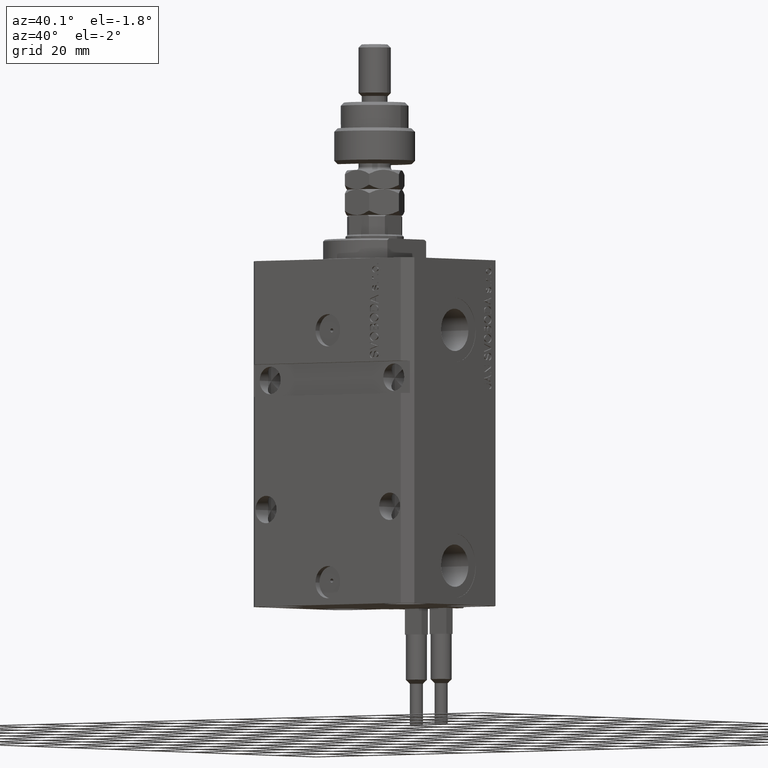
[diagram: clean part render]
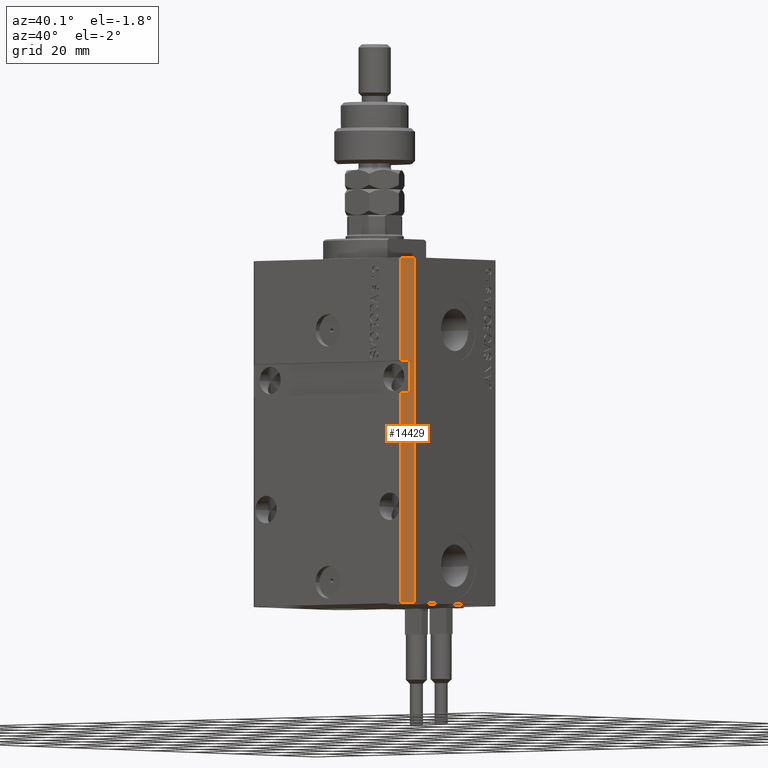
[diagram: same view with one face highlighted and labeled with its STEP entity id]
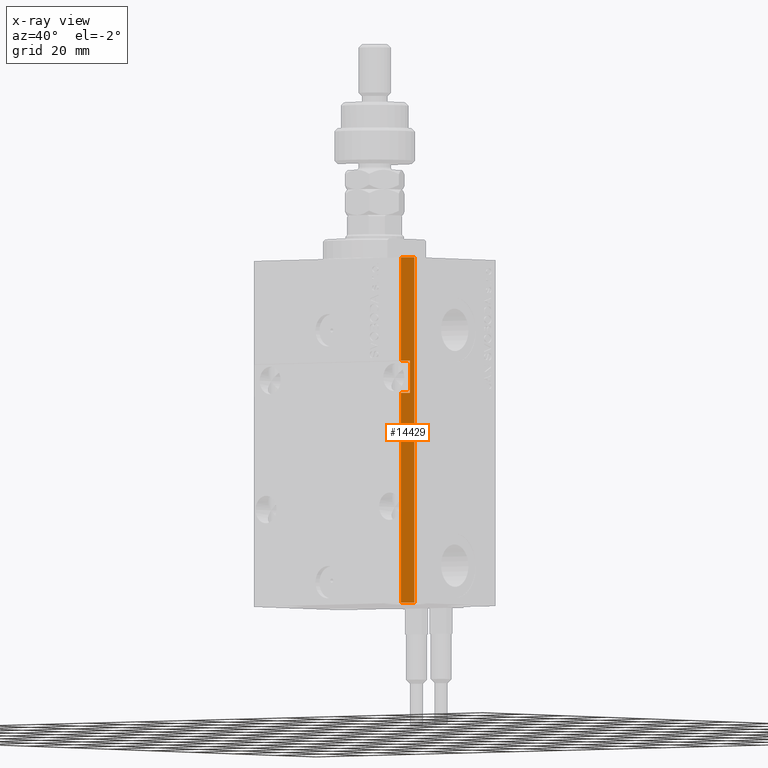
[diagram: x-ray of the same camera — body ghosted, the highlighted face saturated]
A machine part, auxiliary view. The second image highlights one B-rep face of the part: STEP entity #14429.
The next image is the same camera in x-ray: the body ghosted, the highlighted face saturated — about 0% of this face is hidden behind the body in this view.
In plain terms, the highlighted planar face has unit normal (0.7071, -0.7071, 0).
Its self-contained STEP definition (entity closure, byte-faithful):
#604 = CARTESIAN_POINT ( 'NONE',  ( 29.49999999999650413, -22.49999999999949196, -107.0000000000000000 ) ) ;
#1216 = LINE ( 'NONE', #5934, #37276 ) ;
#3054 = EDGE_CURVE ( 'NONE', #18248, #16343, #45927, .T. ) ;
#3268 = ORIENTED_EDGE ( 'NONE', *, *, #42525, .F. ) ;
#3622 = LINE ( 'NONE', #43746, #51533 ) ;
#3855 = EDGE_CURVE ( 'NONE', #22229, #37387, #43417, .T. ) ;
#4138 = DIRECTION ( 'NONE',  ( 0.000000000000000000, 0.000000000000000000, 1.000000000000000000 ) ) ;
#4633 = AXIS2_PLACEMENT_3D ( 'NONE', #26770, #19185, #43540 ) ;
#5110 = VECTOR ( 'NONE', #44025, 1000.000000000000000 ) ;
#5276 = LINE ( 'NONE', #13398, #9642 ) ;
#5812 = ORIENTED_EDGE ( 'NONE', *, *, #3855, .F. ) ;
#5934 = CARTESIAN_POINT ( 'NONE',  ( 29.49999999999650413, -22.49999999999949196, -107.0000000000000000 ) ) ;
#8734 = DIRECTION ( 'NONE',  ( 0.7071067811865483499, 0.7071067811865466846, 0.000000000000000000 ) ) ;
#9642 = VECTOR ( 'NONE', #42766, 1000.000000000000000 ) ;
#10251 = LINE ( 'NONE', #39111, #32492 ) ;
#10440 = CARTESIAN_POINT ( 'NONE',  ( 31.49999999999650413, -20.49999999999949196, -41.99999999999998579 ) ) ;
#11738 = VECTOR ( 'NONE', #50515, 1000.000000000000000 ) ;
#13398 = CARTESIAN_POINT ( 'NONE',  ( 31.49999999999651124, -20.49999999999949551, -107.0000000000000000 ) ) ;
#14429 = ADVANCED_FACE ( 'NONE', ( #23122 ), #39120, .T. ) ;
#16001 = VECTOR ( 'NONE', #8734, 1000.000000000000000 ) ;
#16343 = VERTEX_POINT ( 'NONE', #10440 ) ;
#16914 = EDGE_CURVE ( 'NONE', #22229, #16343, #5276, .T. ) ;
#17243 = DIRECTION ( 'NONE',  ( 0.000000000000000000, 0.000000000000000000, 1.000000000000000000 ) ) ;
#17892 = DIRECTION ( 'NONE',  ( 0.7071067811865483499, 0.7071067811865466846, 7.548521435980509068E-17 ) ) ;
#18248 = VERTEX_POINT ( 'NONE', #47404 ) ;
#19061 = CARTESIAN_POINT ( 'NONE',  ( 29.49999999999650768, -22.49999999999948841, -32.00000000000001421 ) ) ;
#19185 = DIRECTION ( 'NONE',  ( 0.7071067811865466846, -0.7071067811865483499, 0.000000000000000000 ) ) ;
#19244 = VERTEX_POINT ( 'NONE', #30225 ) ;
#19521 = CARTESIAN_POINT ( 'NONE',  ( 32.49999999999651124, -19.49999999999949196, -107.0000000000000000 ) ) ;
#21818 = CARTESIAN_POINT ( 'NONE',  ( 29.49999999999650058, -22.49999999999949551, -41.99999999999999289 ) ) ;
#22229 = VERTEX_POINT ( 'NONE', #42352 ) ;
#22358 = VERTEX_POINT ( 'NONE', #19521 ) ;
#23122 = FACE_OUTER_BOUND ( 'NONE', #26896, .T. ) ;
#24809 = EDGE_CURVE ( 'NONE', #33611, #22358, #40481, .T. ) ;
#26770 = CARTESIAN_POINT ( 'NONE',  ( 29.49999999999650413, -22.49999999999949196, -107.0000000000000000 ) ) ;
#26896 = EDGE_LOOP ( 'NONE', ( #49633, #31080, #29187, #47794, #3268, #35601, #5812, #48255 ) ) ;
#27071 = CARTESIAN_POINT ( 'NONE',  ( 29.49999999999650413, -22.49999999999949196, -32.00000000000000711 ) ) ;
#29187 = ORIENTED_EDGE ( 'NONE', *, *, #24809, .T. ) ;
#30225 = CARTESIAN_POINT ( 'NONE',  ( 29.49999999999650413, -22.49999999999949196, 0.000000000000000000 ) ) ;
#31080 = ORIENTED_EDGE ( 'NONE', *, *, #31848, .F. ) ;
#31848 = EDGE_CURVE ( 'NONE', #33611, #18248, #1216, .T. ) ;
#32492 = VECTOR ( 'NONE', #46939, 1000.000000000000000 ) ;
#33601 = EDGE_CURVE ( 'NONE', #37387, #19244, #3622, .T. ) ;
#33611 = VERTEX_POINT ( 'NONE', #39069 ) ;
#35601 = ORIENTED_EDGE ( 'NONE', *, *, #33601, .F. ) ;
#35901 = CARTESIAN_POINT ( 'NONE',  ( 32.49999999999651124, -19.49999999999949196, -107.0000000000000000 ) ) ;
#37276 = VECTOR ( 'NONE', #17243, 1000.000000000000000 ) ;
#37387 = VERTEX_POINT ( 'NONE', #27071 ) ;
#38369 = VERTEX_POINT ( 'NONE', #46805 ) ;
#39069 = CARTESIAN_POINT ( 'NONE',  ( 29.49999999999650413, -22.49999999999949196, -107.0000000000000000 ) ) ;
#39111 = CARTESIAN_POINT ( 'NONE',  ( 29.49999999999650413, -22.49999999999949196, 0.000000000000000000 ) ) ;
#39120 = PLANE ( 'NONE',  #4633 ) ;
#40481 = LINE ( 'NONE', #604, #16001 ) ;
#41902 = VECTOR ( 'NONE', #17892, 1000.000000000000000 ) ;
#42352 = CARTESIAN_POINT ( 'NONE',  ( 31.49999999999651124, -20.49999999999949196, -32.00000000000000711 ) ) ;
#42525 = EDGE_CURVE ( 'NONE', #19244, #38369, #10251, .T. ) ;
#42766 = DIRECTION ( 'NONE',  ( 0.000000000000000000, 0.000000000000000000, -1.000000000000000000 ) ) ;
#43417 = LINE ( 'NONE', #19061, #11738 ) ;
#43540 = DIRECTION ( 'NONE',  ( 0.7071067811865483499, 0.7071067811865466846, 0.000000000000000000 ) ) ;
#43746 = CARTESIAN_POINT ( 'NONE',  ( 29.49999999999650413, -22.49999999999949196, -107.0000000000000000 ) ) ;
#43761 = LINE ( 'NONE', #35901, #5110 ) ;
#44025 = DIRECTION ( 'NONE',  ( 0.000000000000000000, 0.000000000000000000, 1.000000000000000000 ) ) ;
#45927 = LINE ( 'NONE', #21818, #41902 ) ;
#46805 = CARTESIAN_POINT ( 'NONE',  ( 32.49999999999651124, -19.49999999999949196, 0.000000000000000000 ) ) ;
#46939 = DIRECTION ( 'NONE',  ( 0.7071067811865483499, 0.7071067811865466846, 0.000000000000000000 ) ) ;
#47087 = EDGE_CURVE ( 'NONE', #22358, #38369, #43761, .T. ) ;
#47404 = CARTESIAN_POINT ( 'NONE',  ( 29.49999999999650058, -22.49999999999949196, -41.99999999999998579 ) ) ;
#47794 = ORIENTED_EDGE ( 'NONE', *, *, #47087, .T. ) ;
#48255 = ORIENTED_EDGE ( 'NONE', *, *, #16914, .T. ) ;
#49633 = ORIENTED_EDGE ( 'NONE', *, *, #3054, .F. ) ;
#50515 = DIRECTION ( 'NONE',  ( -0.7071067811865483499, -0.7071067811865466846, 7.548521435980509068E-17 ) ) ;
#51533 = VECTOR ( 'NONE', #4138, 1000.000000000000000 ) ;